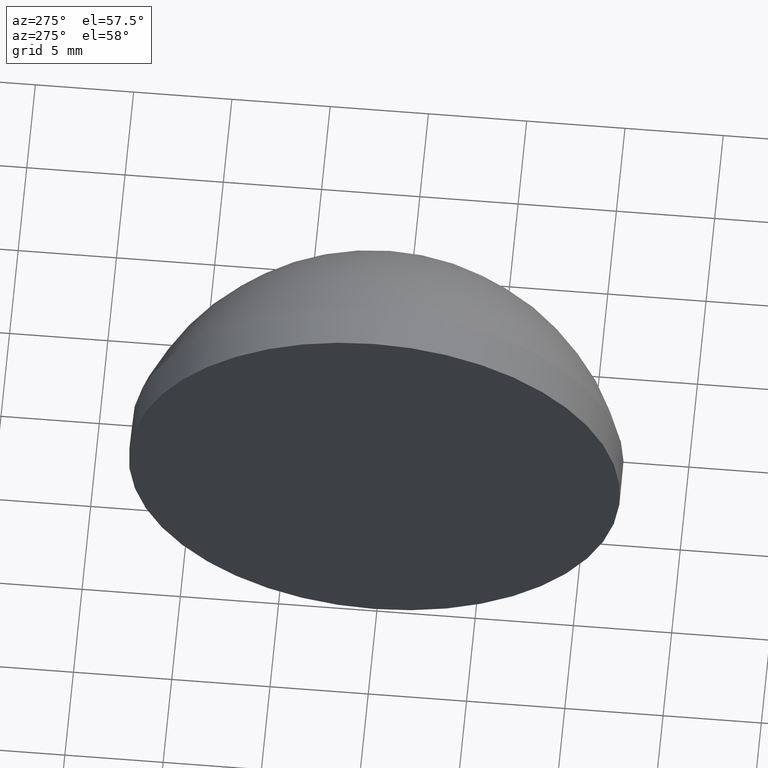
[diagram: clean part render]
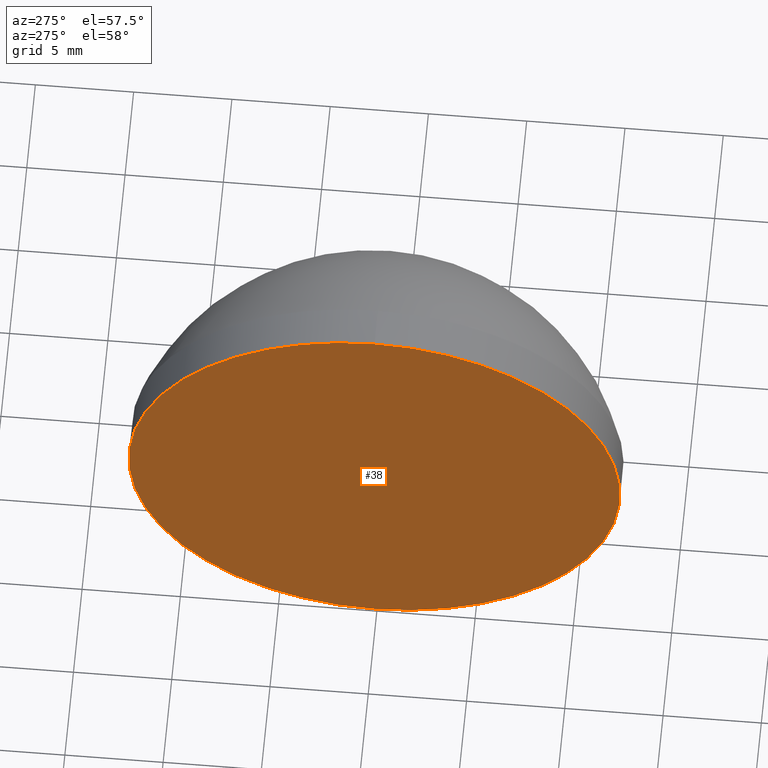
[diagram: same view with one face highlighted and labeled with its STEP entity id]
A machine part, auxiliary view. The second image highlights one B-rep face of the part: STEP entity #38.
In plain terms, the highlighted planar face has unit normal (1, 0, 0).
Its self-contained STEP definition (entity closure, byte-faithful):
#4 = ORIENTED_EDGE ( 'NONE', *, *, #62, .T. ) ;
#17 = DIRECTION ( 'NONE',  ( 0.0000000000000000000, 0.0000000000000000000, 1.000000000000000000 ) ) ;
#19 = DIRECTION ( 'NONE',  ( -1.000000000000000000, -0.0000000000000000000, -0.0000000000000000000 ) ) ;
#25 = AXIS2_PLACEMENT_3D ( 'NONE', #178, #19, #17 ) ;
#30 = DIRECTION ( 'NONE',  ( 0.0000000000000000000, 0.0000000000000000000, 1.000000000000000000 ) ) ;
#38 = ADVANCED_FACE ( 'NONE', ( #92 ), #88, .F. ) ;
#39 = DIRECTION ( 'NONE',  ( 0.0000000000000000000, 0.0000000000000000000, -1.000000000000000000 ) ) ;
#47 = DIRECTION ( 'NONE',  ( -1.000000000000000000, -0.0000000000000000000, -0.0000000000000000000 ) ) ;
#52 = CIRCLE ( 'NONE', #96, 12.49999999999999800 ) ;
#60 = ORIENTED_EDGE ( 'NONE', *, *, #157, .T. ) ;
#62 = EDGE_CURVE ( 'NONE', #86, #176, #123, .T. ) ;
#86 = VERTEX_POINT ( 'NONE', #89 ) ;
#87 = DIRECTION ( 'NONE',  ( 1.000000000000000000, 0.0000000000000000000, 0.0000000000000000000 ) ) ;
#88 = PLANE ( 'NONE',  #124 ) ;
#89 = CARTESIAN_POINT ( 'NONE',  ( 509.7602360895284600, 5.104111790186721000, 12.49999999999999800 ) ) ;
#92 = FACE_OUTER_BOUND ( 'NONE', #140, .T. ) ;
#96 = AXIS2_PLACEMENT_3D ( 'NONE', #163, #47, #30 ) ;
#121 = CARTESIAN_POINT ( 'NONE',  ( 509.7602360895284600, 5.104111790186722800, -12.49999999999999800 ) ) ;
#123 = CIRCLE ( 'NONE', #25, 12.49999999999999800 ) ;
#124 = AXIS2_PLACEMENT_3D ( 'NONE', #177, #87, #39 ) ;
#140 = EDGE_LOOP ( 'NONE', ( #4, #60 ) ) ;
#157 = EDGE_CURVE ( 'NONE', #176, #86, #52, .T. ) ;
#163 = CARTESIAN_POINT ( 'NONE',  ( 509.7602360895284600, 5.104111790186721000, 0.0000000000000000000 ) ) ;
#176 = VERTEX_POINT ( 'NONE', #121 ) ;
#177 = CARTESIAN_POINT ( 'NONE',  ( 509.7602360895284600, 5.104111790186721000, 0.0000000000000000000 ) ) ;
#178 = CARTESIAN_POINT ( 'NONE',  ( 509.7602360895284600, 5.104111790186721000, 0.0000000000000000000 ) ) ;